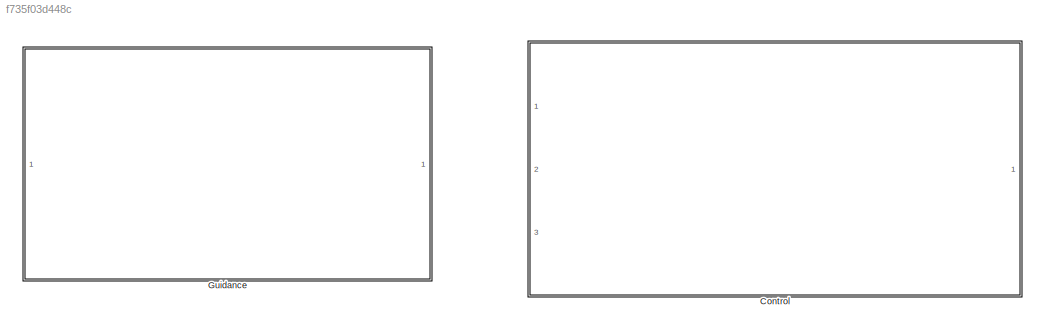
MODEL slx_f735f03d448c
KIND model
CONFIG AbsTol = auto
CONFIG EnableMultiTasking = off
CONFIG FixedStep = auto
CONFIG MaxStep = auto
CONFIG MinStep = auto
CONFIG RelTol = 1e-3
CONFIG SampleTimeConstraint = Unconstrained
CONFIG Solver = VariableStepAuto
CONFIG SolverName = VariableStepAuto
CONFIG StartTime = 0.0
CONFIG StopTime = 10.0
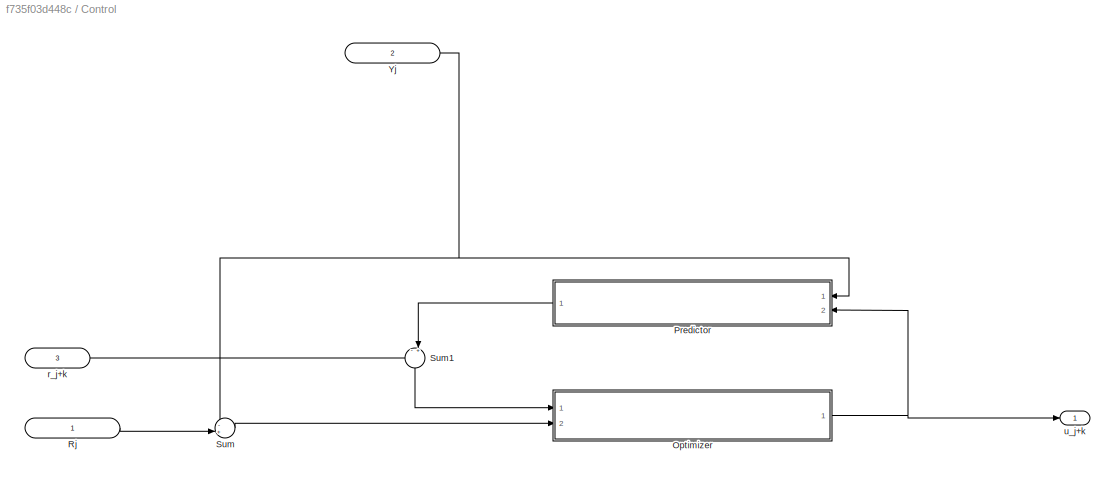
BLOCK [SubSystem] Control
  Ports = [3, 1]
  RequestExecContextInheritance = off
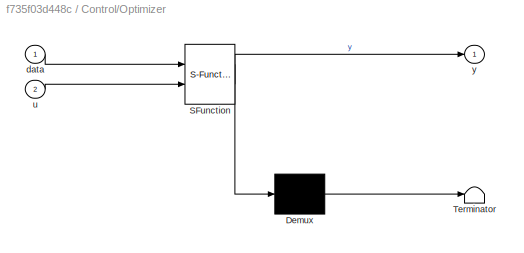
BLOCK [SubSystem] Control/Optimizer
  ErrorFcn = Stateflow.Translate.translate
  PermitHierarchicalResolution = ExplicitOnly
  Ports = [2, 1]
  RequestExecContextInheritance = off
  SFBlockType = MATLAB Function
  TreatAsAtomicUnit = on
BLOCK [Demux] Control/Optimizer/ Demux 
  Outputs = 1
  Ports = [1, 1]
BLOCK [S-Function] Control/Optimizer/ SFunction 
  EnableBusSupport = off
  FunctionName = sf_sfun
  PortCounts = [2 2]
  Ports = [2, 2]
  SFcnIsStateOwnerBlock = off
  SFunctionDeploymentMode = off
  Tag = Stateflow S-Function 1
BLOCK [Terminator] Control/Optimizer/ Terminator 
BLOCK [Inport] Control/Optimizer/data
  IconDisplay = Port number
BLOCK [Inport] Control/Optimizer/u
  IconDisplay = Port number
  Port = 2
BLOCK [Outport] Control/Optimizer/y
  IconDisplay = Port number
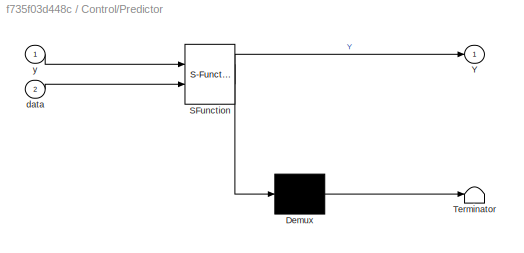
BLOCK [SubSystem] Control/Predictor
  ErrorFcn = Stateflow.Translate.translate
  PermitHierarchicalResolution = ExplicitOnly
  Ports = [2, 1]
  RequestExecContextInheritance = off
  SFBlockType = MATLAB Function
  TreatAsAtomicUnit = on
BLOCK [Demux] Control/Predictor/ Demux 
  Outputs = 1
  Ports = [1, 1]
BLOCK [S-Function] Control/Predictor/ SFunction 
  EnableBusSupport = off
  FunctionName = sf_sfun
  PortCounts = [2 2]
  Ports = [2, 2]
  SFcnIsStateOwnerBlock = off
  SFunctionDeploymentMode = off
  Tag = Stateflow S-Function 2
BLOCK [Terminator] Control/Predictor/ Terminator 
BLOCK [Outport] Control/Predictor/Y
  IconDisplay = Port number
BLOCK [Inport] Control/Predictor/data
  IconDisplay = Port number
  Port = 2
BLOCK [Inport] Control/Predictor/y
  IconDisplay = Port number
BLOCK [Inport] Control/Rj
  IconDisplay = Port number
BLOCK [Sum] Control/Sum
  IconShape = round
  InputSameDT = off
  Inputs = -+|
  OutDataTypeStr = Inherit: Inherit via internal rule
  Ports = [2, 1]
  SaturateOnIntegerOverflow = off
BLOCK [Sum] Control/Sum1
  IconShape = round
  InputSameDT = off
  Inputs = -+|
  OutDataTypeStr = Inherit: Inherit via internal rule
  Ports = [2, 1]
  SaturateOnIntegerOverflow = off
BLOCK [Inport] Control/Yj
  IconDisplay = Port number
  Port = 2
BLOCK [Inport] Control/r_j+k
  IconDisplay = Port number
  Port = 3
BLOCK [Outport] Control/u_j+k
  IconDisplay = Port number
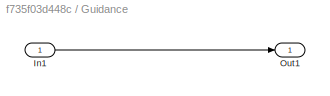
BLOCK [SubSystem] Guidance
  Ports = [1, 1]
  RequestExecContextInheritance = off
BLOCK [Inport] Guidance/In1
  IconDisplay = Port number
BLOCK [Outport] Guidance/Out1
  IconDisplay = Port number
NET Control/Optimizer:1 -> Control/Predictor:2, Control/u_j+k:1
LINE Control/Predictor:1 -> Control/Sum1:2
LINE Control/Rj:1 -> Control/Sum:2
LINE Control/Sum1:1 -> Control/Optimizer:1
LINE Control/Sum:1 -> Control/Optimizer:2
NET Control/Yj:1 -> Control/Predictor:1, Control/Sum:1
LINE Control/r_j+k:1 -> Control/Sum1:1
LINE Guidance/In1:1 -> Guidance/Out1:1
note: NET lines group one-source signal fan-out (src -> all destinations, sorted); 1:1 wires keep LINE
CHART Control/Optimizer states=1 transitions=1
  STATE_LABEL 'eML_blk_kernel()'
  STATE_LABEL 'SCRIPT:\nfunction y = fcn(data, u)\n\ny = u;\n'
CHART Control/Predictor states=1 transitions=1
  STATE_LABEL 'eML_blk_kernel()'
  STATE_LABEL 'SCRIPT:\nfunction Y = fcn(y, data)\n\ny = u;\n'
